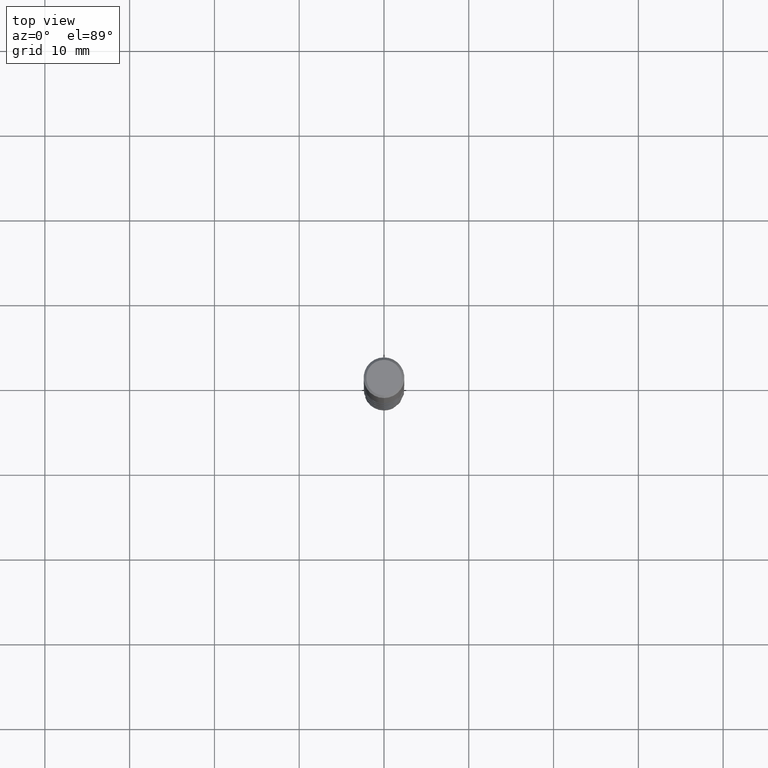
[diagram: clean part render]
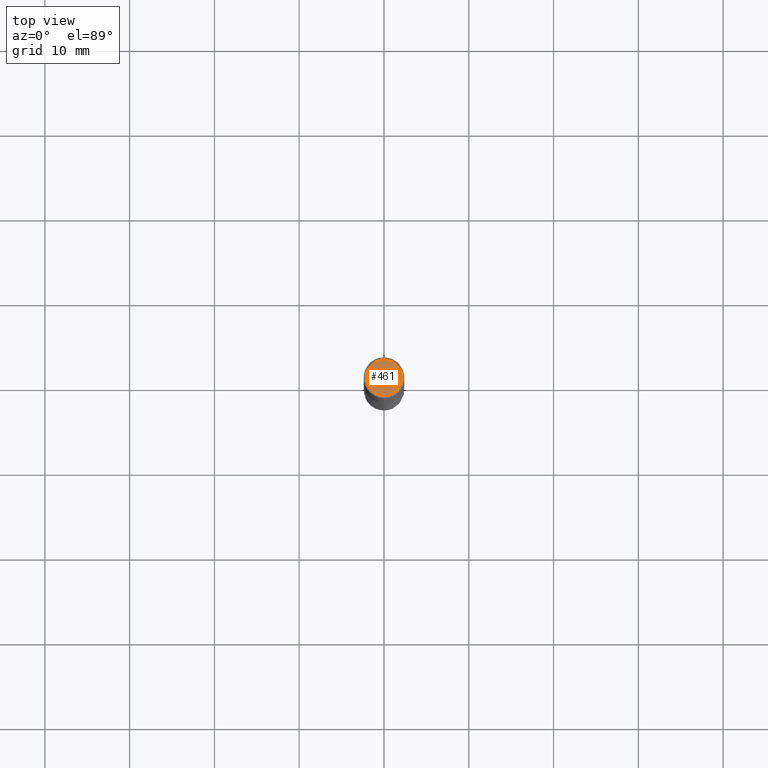
[diagram: same view with one face highlighted and labeled with its STEP entity id]
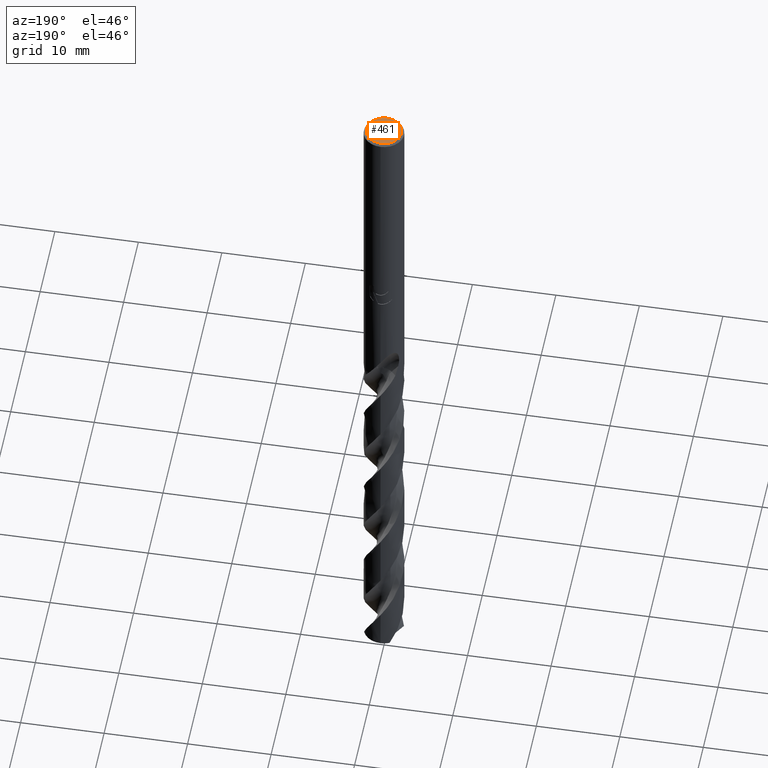
[diagram: same view with one face highlighted and labeled with its STEP entity id]
A machine part, top view. The second image highlights one B-rep face of the part: STEP entity #461.
A second angle (auxiliary view) of the same face is appended — the face is thin or edge-on in the first view.
In plain terms, the highlighted planar face has unit normal (-0, 0, 1).
Its self-contained STEP definition (entity closure, byte-faithful):
#279=EDGE_CURVE('',#409,#653,#778,.T.);
#409=VERTEX_POINT('',#919);
#461=ADVANCED_FACE('',(#977),#978,.T.);
#551=EDGE_CURVE('',#653,#409,#1078,.T.);
#653=VERTEX_POINT('',#1186);
#778=CIRCLE('',#1334,2.1);
#919=CARTESIAN_POINT('',(0.0,2.1,0.0));
#977=FACE_OUTER_BOUND('',#4779,.T.);
#978=PLANE('',#4780);
#1078=CIRCLE('',#5562,2.1);
#1186=CARTESIAN_POINT('',(2.57167334302699E-016,-2.1,0.0));
#1334=AXIS2_PLACEMENT_3D('',#8734,#8735,#8736);
#4779=EDGE_LOOP('',(#8972,#8973));
#4780=AXIS2_PLACEMENT_3D('',#8974,#8975,#8976);
#5562=AXIS2_PLACEMENT_3D('',#9118,#9119,#9120);
#8734=CARTESIAN_POINT('',(0.0,0.0,0.0));
#8735=DIRECTION('',(0.0,0.0,-1.0));
#8736=DIRECTION('',(0.0,1.0,0.0));
#8972=ORIENTED_EDGE('',*,*,#279,.F.);
#8973=ORIENTED_EDGE('',*,*,#551,.F.);
#8974=CARTESIAN_POINT('',(0.0,1.05,0.0));
#8975=DIRECTION('',(-0.0,0.0,1.0));
#8976=DIRECTION('',(0.0,-1.0,0.0));
#9118=CARTESIAN_POINT('',(0.0,0.0,0.0));
#9119=DIRECTION('',(0.0,0.0,-1.0));
#9120=DIRECTION('',(0.0,1.0,0.0));